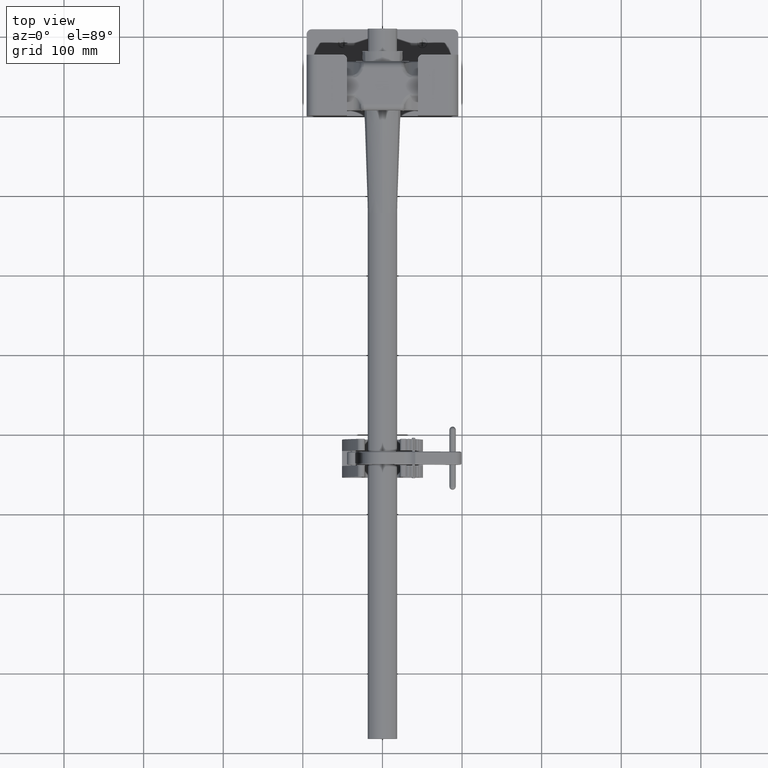
[diagram: clean part render]
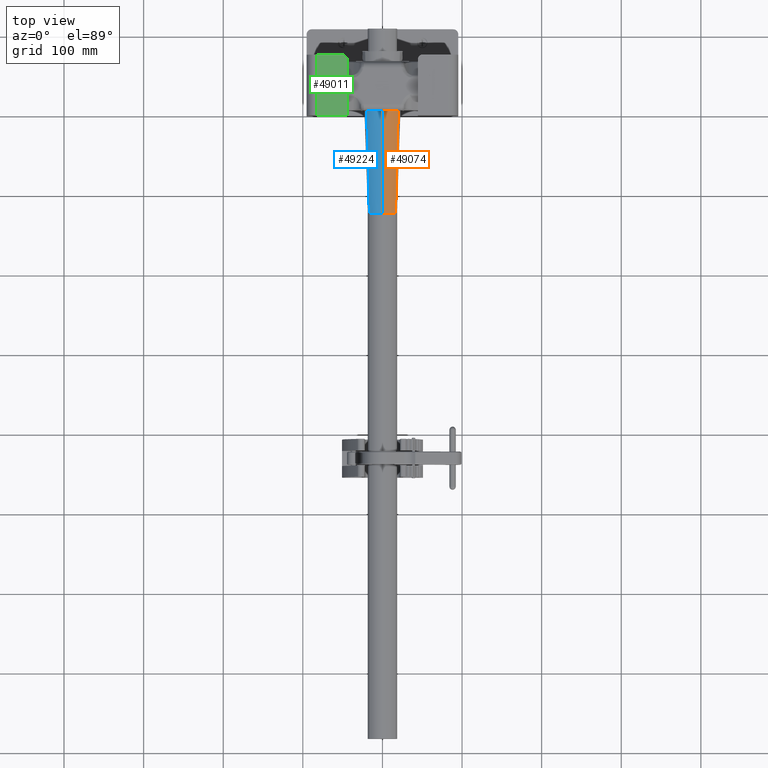
[diagram: same view with three faces highlighted in distinct colors, each labeled with its STEP entity id]
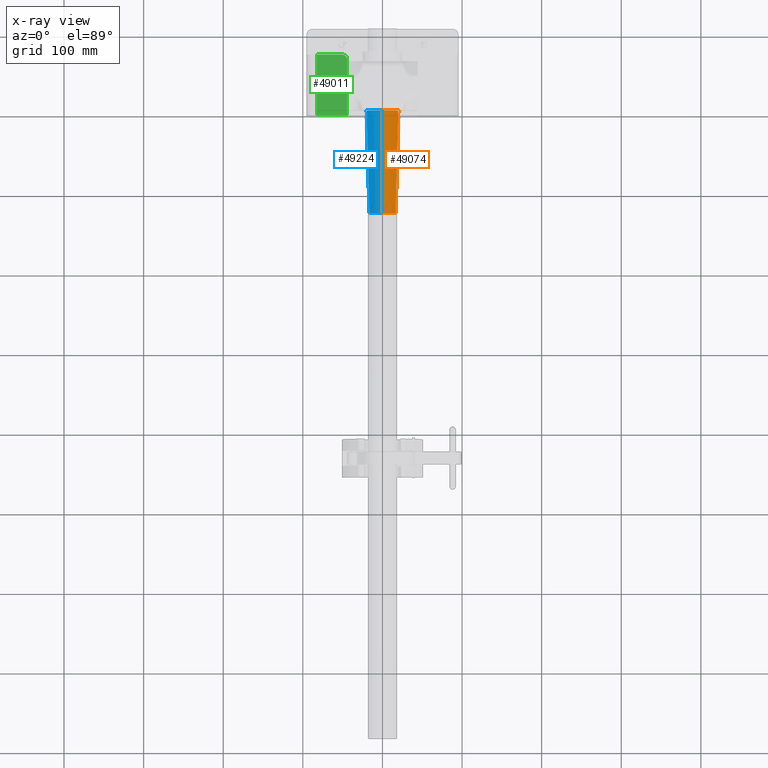
[diagram: x-ray of the same camera — body ghosted, the three highlighted faces saturated]
A machine part, top view with three faces highlighted in distinct colors.
The next image is the same camera in x-ray (body ghosted, the three faces saturated) — at least one of them is partly hidden behind the body in this view.
Their STEP definitions:

[orange] entity #49074 — the highlighted conical surface has half-angle 2 deg.
#1091 = VERTEX_POINT ( 'NONE', #5729 ) ;
#1491 = VERTEX_POINT ( 'NONE', #4902 ) ;
#1496 = VERTEX_POINT ( 'NONE', #4907 ) ;
#1504 = VERTEX_POINT ( 'NONE', #4915 ) ;
#4902 = CARTESIAN_POINT ( 'NONE',  ( 1.365923996832131600E-016, 26.00000000000000000, 0.5000000000000000000 ) ) ;
#4907 = CARTESIAN_POINT ( 'NONE',  ( 1.365923996832131600E-016, 31.06999999999999700, 0.6770483013231614100 ) ) ;
#4915 = CARTESIAN_POINT ( 'NONE',  ( 0.7813377612708749500, 31.06999999999999700, 0.3218947734727636800 ) ) ;
#5729 = CARTESIAN_POINT ( 'NONE',  ( 0.6479452054794521100, 26.00000000000000000, 0.2054794520547944500 ) ) ;
#7962 = ORIENTED_EDGE ( 'NONE', *, *, #34999, .F. ) ;
#7963 = ORIENTED_EDGE ( 'NONE', *, *, #35091, .T. ) ;
#8845 = CARTESIAN_POINT ( 'NONE',  ( 1.365923996832131600E-016, 26.00000000000000000, 0.5000000000000001100 ) ) ;
#8846 = DIRECTION ( 'NONE',  ( 0.0000000000000000000, 0.9993908270190957600, 0.03489949670250104600 ) ) ;
#8931 = CARTESIAN_POINT ( 'NONE',  ( 1.365923996832131600E-016, 31.06999999999999700, -0.3599999999999997100 ) ) ;
#8938 = DIRECTION ( 'NONE',  ( -0.0000000000000000000, 1.000000000000000000, 0.0000000000000000000 ) ) ;
#8939 = DIRECTION ( 'NONE',  ( 0.0000000000000000000, 0.0000000000000000000, 1.000000000000000000 ) ) ;
#9081 = CARTESIAN_POINT ( 'NONE',  ( 1.125820169263983600E-016, 26.00000000000000000, -0.3599999999999997100 ) ) ;
#9090 = DIRECTION ( 'NONE',  ( 0.0000000000000000000, 1.000000000000000000, 0.0000000000000000000 ) ) ;
#9091 = DIRECTION ( 'NONE',  ( 0.0000000000000000000, 0.0000000000000000000, 1.000000000000000000 ) ) ;
#9110 = CARTESIAN_POINT ( 'NONE',  ( 0.6479452054794521100, 26.00000000000000000, 0.2054794520547947300 ) ) ;
#9111 = DIRECTION ( 'NONE',  ( -0.02629414135119941000, -0.9993908270190957600, -0.02294761427013767800 ) ) ;
#12895 = AXIS2_PLACEMENT_3D ( 'NONE', #27489, #27488, #27484 ) ;
#19081 = VECTOR ( 'NONE', #8846, 39.37007874015748100 ) ;
#19083 = LINE ( 'NONE', #8845, #19081 ) ;
#19144 = CIRCLE ( 'NONE', #38833, 1.037048301323161100 ) ;
#19218 = VECTOR ( 'NONE', #9111, 39.37007874015748900 ) ;
#19222 = CIRCLE ( 'NONE', #38889, 0.8599999999999996500 ) ;
#19223 = LINE ( 'NONE', #9110, #19218 ) ;
#27484 = DIRECTION ( 'NONE',  ( 0.0000000000000000000, 0.0000000000000000000, 1.000000000000000000 ) ) ;
#27488 = DIRECTION ( 'NONE',  ( 0.0000000000000000000, 1.000000000000000000, 0.0000000000000000000 ) ) ;
#27489 = CARTESIAN_POINT ( 'NONE',  ( 1.365923996832131600E-016, 26.00000000000000000, -0.3599999999999997100 ) ) ;
#30132 = ORIENTED_EDGE ( 'NONE', *, *, #35099, .F. ) ;
#30133 = ORIENTED_EDGE ( 'NONE', *, *, #35034, .F. ) ;
#34999 = EDGE_CURVE ( 'NONE', #1491, #1496, #19083, .T. ) ;
#35034 = EDGE_CURVE ( 'NONE', #1496, #1504, #19144, .T. ) ;
#35091 = EDGE_CURVE ( 'NONE', #1491, #1091, #19222, .T. ) ;
#35099 = EDGE_CURVE ( 'NONE', #1504, #1091, #19223, .T. ) ;
#38833 = AXIS2_PLACEMENT_3D ( 'NONE', #8931, #8938, #8939 ) ;
#38889 = AXIS2_PLACEMENT_3D ( 'NONE', #9081, #9090, #9091 ) ;
#41078 = FACE_OUTER_BOUND ( 'NONE', #49492, .T. ) ;
#41087 = CONICAL_SURFACE ( 'NONE', #12895, 0.8599999999999998800, 0.03490658503988666700 ) ;
#49074 = ADVANCED_FACE ( 'NONE', ( #41078 ), #41087, .T. ) ;
#49492 = EDGE_LOOP ( 'NONE', ( #7962, #7963, #30132, #30133 ) ) ;

[blue] entity #49224 — the highlighted conical surface has half-angle 2 deg.
#1469 = VERTEX_POINT ( 'NONE', #39589 ) ;
#1476 = VERTEX_POINT ( 'NONE', #5595 ) ;
#1491 = VERTEX_POINT ( 'NONE', #4902 ) ;
#1496 = VERTEX_POINT ( 'NONE', #4907 ) ;
#4902 = CARTESIAN_POINT ( 'NONE',  ( 1.365923996832131600E-016, 26.00000000000000000, 0.5000000000000000000 ) ) ;
#4907 = CARTESIAN_POINT ( 'NONE',  ( 1.365923996832131600E-016, 31.06999999999999700, 0.6770483013231614100 ) ) ;
#5595 = CARTESIAN_POINT ( 'NONE',  ( -0.6479452054794517800, 26.00000000000000000, 0.2054794520547944500 ) ) ;
#7665 = ORIENTED_EDGE ( 'NONE', *, *, #34999, .T. ) ;
#7667 = ORIENTED_EDGE ( 'NONE', *, *, #34998, .T. ) ;
#7668 = ORIENTED_EDGE ( 'NONE', *, *, #34996, .F. ) ;
#7670 = ORIENTED_EDGE ( 'NONE', *, *, #34997, .T. ) ;
#8810 = CARTESIAN_POINT ( 'NONE',  ( -0.6479452054794520000, 26.00000000000000000, 0.2054794520547944500 ) ) ;
#8836 = CARTESIAN_POINT ( 'NONE',  ( 1.365923996832131600E-016, 31.06999999999999700, -0.3599999999999997100 ) ) ;
#8837 = DIRECTION ( 'NONE',  ( -0.0000000000000000000, 1.000000000000000000, 0.0000000000000000000 ) ) ;
#8838 = DIRECTION ( 'NONE',  ( 0.0000000000000000000, 0.0000000000000000000, 1.000000000000000000 ) ) ;
#8840 = DIRECTION ( 'NONE',  ( 0.02629414135119942700, -0.9993908270190957600, -0.02294761427013767100 ) ) ;
#8841 = CARTESIAN_POINT ( 'NONE',  ( 1.125820169263983600E-016, 26.00000000000000000, -0.3599999999999997100 ) ) ;
#8843 = DIRECTION ( 'NONE',  ( 0.0000000000000000000, 1.000000000000000000, 0.0000000000000000000 ) ) ;
#8844 = DIRECTION ( 'NONE',  ( 0.0000000000000000000, 0.0000000000000000000, 1.000000000000000000 ) ) ;
#8845 = CARTESIAN_POINT ( 'NONE',  ( 1.365923996832131600E-016, 26.00000000000000000, 0.5000000000000001100 ) ) ;
#8846 = DIRECTION ( 'NONE',  ( 0.0000000000000000000, 0.9993908270190957600, 0.03489949670250104600 ) ) ;
#13005 = AXIS2_PLACEMENT_3D ( 'NONE', #37782, #37785, #37784 ) ;
#19080 = VECTOR ( 'NONE', #8840, 39.37007874015748900 ) ;
#19081 = VECTOR ( 'NONE', #8846, 39.37007874015748100 ) ;
#19083 = LINE ( 'NONE', #8845, #19081 ) ;
#19093 = LINE ( 'NONE', #8810, #19080 ) ;
#19094 = CIRCLE ( 'NONE', #38780, 1.037048301323161100 ) ;
#19097 = CIRCLE ( 'NONE', #38785, 0.8599999999999996500 ) ;
#34996 = EDGE_CURVE ( 'NONE', #1469, #1496, #19094, .T. ) ;
#34997 = EDGE_CURVE ( 'NONE', #1469, #1476, #19093, .T. ) ;
#34998 = EDGE_CURVE ( 'NONE', #1476, #1491, #19097, .T. ) ;
#34999 = EDGE_CURVE ( 'NONE', #1491, #1496, #19083, .T. ) ;
#37782 = CARTESIAN_POINT ( 'NONE',  ( 1.365923996832131600E-016, 26.00000000000000000, -0.3599999999999997100 ) ) ;
#37784 = DIRECTION ( 'NONE',  ( 0.0000000000000000000, 0.0000000000000000000, 1.000000000000000000 ) ) ;
#37785 = DIRECTION ( 'NONE',  ( 0.0000000000000000000, 1.000000000000000000, 0.0000000000000000000 ) ) ;
#38780 = AXIS2_PLACEMENT_3D ( 'NONE', #8836, #8837, #8838 ) ;
#38785 = AXIS2_PLACEMENT_3D ( 'NONE', #8841, #8843, #8844 ) ;
#39589 = CARTESIAN_POINT ( 'NONE',  ( -0.7813377612708749500, 31.06999999999999700, 0.3218947734727636800 ) ) ;
#41282 = FACE_OUTER_BOUND ( 'NONE', #49461, .T. ) ;
#41289 = CONICAL_SURFACE ( 'NONE', #13005, 0.8599999999999998800, 0.03490658503988666700 ) ;
#49224 = ADVANCED_FACE ( 'NONE', ( #41282 ), #41289, .T. ) ;
#49461 = EDGE_LOOP ( 'NONE', ( #7667, #7665, #7668, #7670 ) ) ;

[green] entity #49011 — the highlighted planar face has unit normal (0, 0, -1).
#1282 = VERTEX_POINT ( 'NONE', #49773 ) ;
#1287 = VERTEX_POINT ( 'NONE', #49778 ) ;
#1291 = VERTEX_POINT ( 'NONE', #49782 ) ;
#1303 = VERTEX_POINT ( 'NONE', #49794 ) ;
#1331 = VERTEX_POINT ( 'NONE', #49822 ) ;
#12834 = AXIS2_PLACEMENT_3D ( 'NONE', #27045, #27046, #27047 ) ;
#16942 = CARTESIAN_POINT ( 'NONE',  ( -3.250000000000000000, 0.0000000000000000000, 3.187500000000000000 ) ) ;
#16952 = CARTESIAN_POINT ( 'NONE',  ( -3.750000000000000000, 3.000000000000000400, 3.187500000000000000 ) ) ;
#16953 = DIRECTION ( 'NONE',  ( 1.000000000000000000, 0.0000000000000000000, 0.0000000000000000000 ) ) ;
#16955 = DIRECTION ( 'NONE',  ( 1.000000000000000000, 0.0000000000000000000, 0.0000000000000000000 ) ) ;
#16956 = CARTESIAN_POINT ( 'NONE',  ( -3.250000000000000000, 4.299999999999999800, 3.187500000000000000 ) ) ;
#16958 = CARTESIAN_POINT ( 'NONE',  ( -2.000000000000000400, 2.750000000000000400, 3.187500000000000000 ) ) ;
#16959 = DIRECTION ( 'NONE',  ( -0.0000000000000000000, -0.0000000000000000000, 1.000000000000000000 ) ) ;
#16960 = DIRECTION ( 'NONE',  ( -1.000000000000000000, 0.0000000000000000000, 0.0000000000000000000 ) ) ;
#16962 = CARTESIAN_POINT ( 'NONE',  ( -1.750000000000000200, 3.000000000000000400, 3.187500000000000000 ) ) ;
#16963 = DIRECTION ( 'NONE',  ( 9.106159978880878600E-017, -1.000000000000000000, 0.0000000000000000000 ) ) ;
#16965 = DIRECTION ( 'NONE',  ( -0.0000000000000000000, -1.000000000000000000, -0.0000000000000000000 ) ) ;
#26122 = LINE ( 'NONE', #16942, #26139 ) ;
#26137 = LINE ( 'NONE', #16952, #26138 ) ;
#26138 = VECTOR ( 'NONE', #16953, 39.37007874015748100 ) ;
#26139 = VECTOR ( 'NONE', #16955, 39.37007874015748100 ) ;
#26140 = VECTOR ( 'NONE', #16963, 39.37007874015748100 ) ;
#26142 = LINE ( 'NONE', #16962, #26140 ) ;
#26144 = LINE ( 'NONE', #16956, #26146 ) ;
#26145 = CIRCLE ( 'NONE', #39079, 0.2500000000000000600 ) ;
#26146 = VECTOR ( 'NONE', #16965, 39.37007874015748100 ) ;
#27039 = PLANE ( 'NONE',  #12834 ) ;
#27045 = CARTESIAN_POINT ( 'NONE',  ( -3.250000000000000000, 4.299999999999999800, 3.187500000000000000 ) ) ;
#27046 = DIRECTION ( 'NONE',  ( 0.0000000000000000000, 0.0000000000000000000, -1.000000000000000000 ) ) ;
#27047 = DIRECTION ( 'NONE',  ( -1.000000000000000000, 0.0000000000000000000, -0.0000000000000000000 ) ) ;
#31319 = EDGE_LOOP ( 'NONE', ( #31608, #31609, #31611, #31613, #31614 ) ) ;
#31608 = ORIENTED_EDGE ( 'NONE', *, *, #42798, .F. ) ;
#31609 = ORIENTED_EDGE ( 'NONE', *, *, #42795, .T. ) ;
#31611 = ORIENTED_EDGE ( 'NONE', *, *, #42788, .F. ) ;
#31613 = ORIENTED_EDGE ( 'NONE', *, *, #42800, .T. ) ;
#31614 = ORIENTED_EDGE ( 'NONE', *, *, #42790, .T. ) ;
#39079 = AXIS2_PLACEMENT_3D ( 'NONE', #16958, #16959, #16960 ) ;
#40986 = FACE_OUTER_BOUND ( 'NONE', #31319, .T. ) ;
#42788 = EDGE_CURVE ( 'NONE', #1287, #1282, #26137, .T. ) ;
#42790 = EDGE_CURVE ( 'NONE', #1291, #1303, #26122, .T. ) ;
#42795 = EDGE_CURVE ( 'NONE', #1331, #1282, #26145, .T. ) ;
#42798 = EDGE_CURVE ( 'NONE', #1331, #1303, #26142, .T. ) ;
#42800 = EDGE_CURVE ( 'NONE', #1287, #1291, #26144, .T. ) ;
#49011 = ADVANCED_FACE ( 'NONE', ( #40986 ), #27039, .F. ) ;
#49773 = CARTESIAN_POINT ( 'NONE',  ( -2.000000000000000400, 3.000000000000000400, 3.187500000000000000 ) ) ;
#49778 = CARTESIAN_POINT ( 'NONE',  ( -3.250000000000000000, 3.000000000000000400, 3.187500000000000000 ) ) ;
#49782 = CARTESIAN_POINT ( 'NONE',  ( -3.250000000000000000, 0.0000000000000000000, 3.187500000000000000 ) ) ;
#49794 = CARTESIAN_POINT ( 'NONE',  ( -1.750000000000000000, 0.0000000000000000000, 3.187500000000000000 ) ) ;
#49822 = CARTESIAN_POINT ( 'NONE',  ( -1.750000000000000200, 2.750000000000000400, 3.187500000000000000 ) ) ;